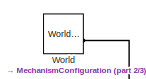
[diagram: root canvas - part 1/3, top left region]
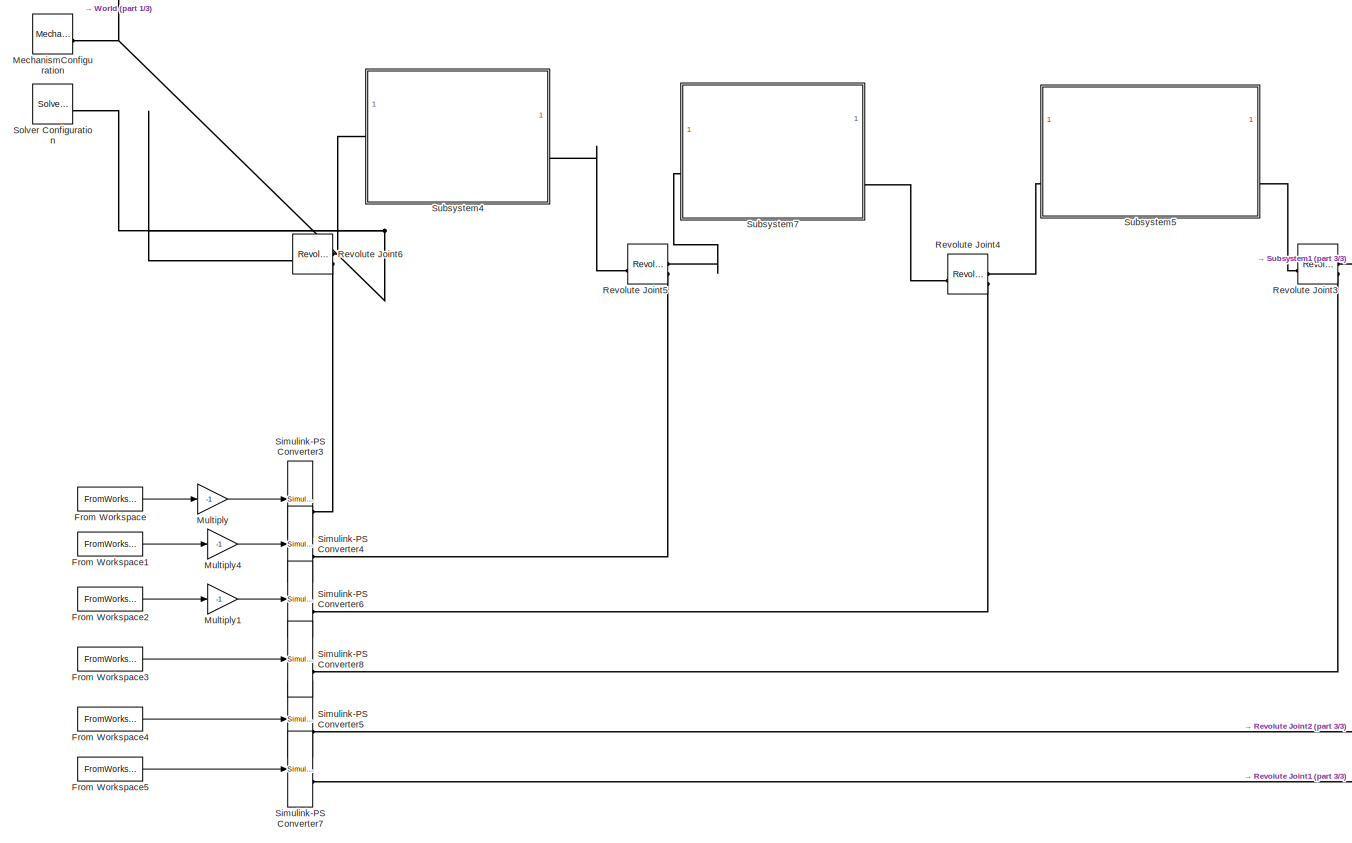
[diagram: root canvas - part 2/3, left side, full height]
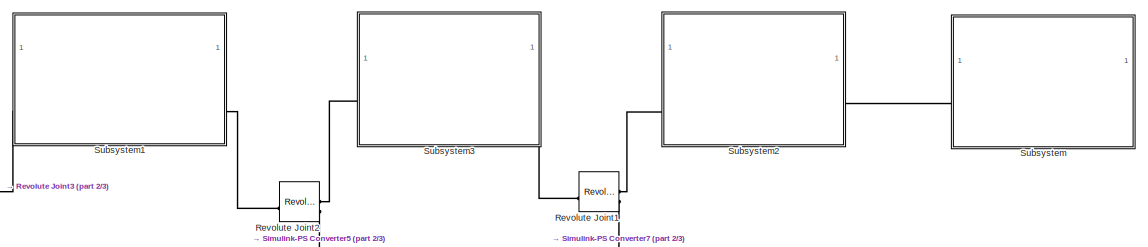
[diagram: root canvas - part 3/3, top right region]
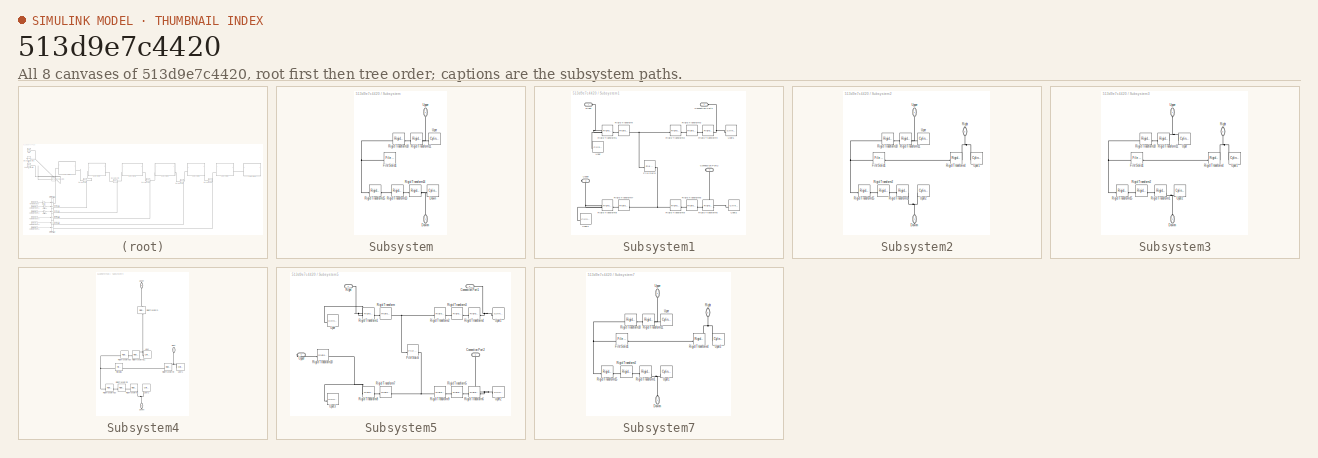
[diagram: thumbnail index - all 8 canvases of the model, root first then tree order]
MODEL slx_513d9e7c4420
KIND model
CONFIG AbsTol = auto
CONFIG EnableMultiTasking = off
CONFIG FixedStep = auto
CONFIG MaxStep = auto
CONFIG MinStep = auto
CONFIG RelTol = 1e-3
CONFIG SampleTimeConstraint = Unconstrained
CONFIG SolverName = VariableStepAuto
CONFIG StartTime = 0.0
CONFIG StopTime = 10
BLOCK [FromWorkspace] From Workspace
  SampleTime = -1
  VariableName = ts_q1
BLOCK [FromWorkspace] From Workspace1
  SampleTime = -1
  VariableName = ts_q2
BLOCK [FromWorkspace] From Workspace2
  SampleTime = -1
  VariableName = ts_q3
BLOCK [FromWorkspace] From Workspace3
  SampleTime = -1
  VariableName = ts_q4
BLOCK [FromWorkspace] From Workspace4
  SampleTime = -1
  VariableName = ts_q5
BLOCK [FromWorkspace] From Workspace5
  SampleTime = -1
  VariableName = ts_q6
BLOCK [Reference] MechanismConfiguration  REF=sm_lib/Utilities/Mechanism
Configuration
  SourceBlock = sm_lib/Utilities/Mechanism\nConfiguration
  SourceType = Mechanism\nConfiguration
BLOCK [Gain] Multiply
  Gain = -1
BLOCK [Gain] Multiply1
  Gain = -1
BLOCK [Gain] Multiply4
  Gain = -1
BLOCK [Reference] Revolute Joint1  REF=sm_lib/Joints/Revolute Joint
  NameLocation = top
  SourceBlock = sm_lib/Joints/Revolute Joint
  SourceType = Revolute Joint
BLOCK [Reference] Revolute Joint2  REF=sm_lib/Joints/Revolute Joint
  NameLocation = top
  SourceBlock = sm_lib/Joints/Revolute Joint
  SourceType = Revolute Joint
BLOCK [Reference] Revolute Joint3  REF=sm_lib/Joints/Revolute Joint
  NameLocation = top
  SourceBlock = sm_lib/Joints/Revolute Joint
  SourceType = Revolute Joint
BLOCK [Reference] Revolute Joint4  REF=sm_lib/Joints/Revolute Joint
  NameLocation = top
  SourceBlock = sm_lib/Joints/Revolute Joint
  SourceType = Revolute Joint
BLOCK [Reference] Revolute Joint5  REF=sm_lib/Joints/Revolute Joint
  NameLocation = top
  SourceBlock = sm_lib/Joints/Revolute Joint
  SourceType = Revolute Joint
BLOCK [Reference] Revolute Joint6  REF=sm_lib/Joints/Revolute Joint
  NameLocation = top
  SourceBlock = sm_lib/Joints/Revolute Joint
  SourceType = Revolute Joint
BLOCK [Reference] Simulink-PS Converter3  REF=nesl_utility/Simulink-PS
Converter
  SourceBlock = nesl_utility/Simulink-PS\nConverter
  SourceType = Simulink-PS\nConverter
BLOCK [Reference] Simulink-PS Converter4  REF=nesl_utility/Simulink-PS
Converter
  SourceBlock = nesl_utility/Simulink-PS\nConverter
  SourceType = Simulink-PS\nConverter
BLOCK [Reference] Simulink-PS Converter5  REF=nesl_utility/Simulink-PS
Converter
  SourceBlock = nesl_utility/Simulink-PS\nConverter
  SourceType = Simulink-PS\nConverter
BLOCK [Reference] Simulink-PS Converter6  REF=nesl_utility/Simulink-PS
Converter
  SourceBlock = nesl_utility/Simulink-PS\nConverter
  SourceType = Simulink-PS\nConverter
BLOCK [Reference] Simulink-PS Converter7  REF=nesl_utility/Simulink-PS
Converter
  SourceBlock = nesl_utility/Simulink-PS\nConverter
  SourceType = Simulink-PS\nConverter
BLOCK [Reference] Simulink-PS Converter8  REF=nesl_utility/Simulink-PS
Converter
  SourceBlock = nesl_utility/Simulink-PS\nConverter
  SourceType = Simulink-PS\nConverter
BLOCK [Reference] Solver Configuration  REF=nesl_utility/Solver
Configuration
  SourceBlock = nesl_utility/Solver\nConfiguration
  SourceType = Solver\nConfiguration
BLOCK [SubSystem] Subsystem
  NameLocation = top
BLOCK [Reference] Subsystem/Down  REF=sm_lib/Body Elements/Cylindrical Solid
  NameLocation = top
  SourceBlock = sm_lib/Body Elements/Cylindrical Solid
  SourceType = Cylindrical Solid
BLOCK [PMIOPort] Subsystem/Downn
  NameLocation = right
  Port = 2
  Side = Right
BLOCK [Reference] Subsystem/File Solid1  REF=sm_lib/Body Elements/File Solid
  SourceBlock = sm_lib/Body Elements/File Solid
  SourceType = File Solid
BLOCK [Reference] Subsystem/Rigid Transform10  REF=sm_lib/Frames and
Transforms/Rigid
Transform
  SourceBlock = sm_lib/Frames and\nTransforms/Rigid\nTransform
  SourceType = Rigid\nTransform
BLOCK [Reference] Subsystem/Rigid Transform11  REF=sm_lib/Frames and
Transforms/Rigid
Transform
  SourceBlock = sm_lib/Frames and\nTransforms/Rigid\nTransform
  SourceType = Rigid\nTransform
BLOCK [Reference] Subsystem/Rigid Transform13  REF=sm_lib/Frames and
Transforms/Rigid
Transform
  SourceBlock = sm_lib/Frames and\nTransforms/Rigid\nTransform
  SourceType = Rigid\nTransform
BLOCK [Reference] Subsystem/Rigid Transform14  REF=sm_lib/Frames and
Transforms/Rigid
Transform
  SourceBlock = sm_lib/Frames and\nTransforms/Rigid\nTransform
  SourceType = Rigid\nTransform
BLOCK [Reference] Subsystem/Rigid Transform15  REF=sm_lib/Frames and
Transforms/Rigid
Transform
  SourceBlock = sm_lib/Frames and\nTransforms/Rigid\nTransform
  SourceType = Rigid\nTransform
BLOCK [Reference] Subsystem/Uper  REF=sm_lib/Body Elements/Cylindrical Solid
  NameLocation = top
  SourceBlock = sm_lib/Body Elements/Cylindrical Solid
  SourceType = Cylindrical Solid
BLOCK [PMIOPort] Subsystem/Upper
  NameLocation = left
  Side = Left
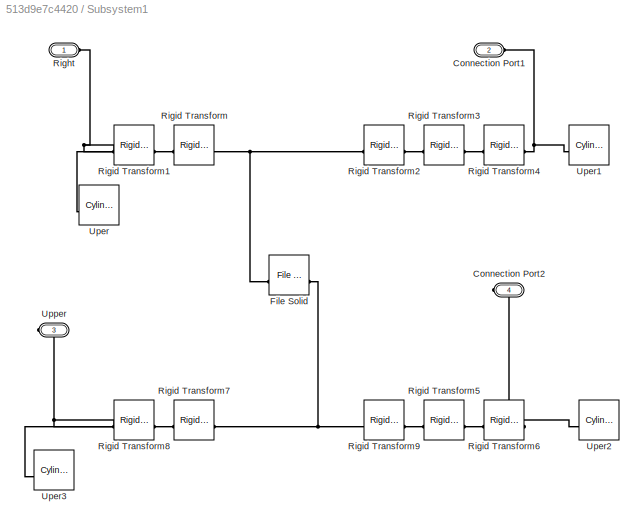
BLOCK [SubSystem] Subsystem1
  NameLocation = top
BLOCK [PMIOPort] Subsystem1/Connection Port1
  Port = 2
  Side = Left
BLOCK [PMIOPort] Subsystem1/Connection Port2
  Port = 4
  Side = Right
BLOCK [Reference] Subsystem1/File Solid  REF=sm_lib/Body Elements/File Solid
  SourceBlock = sm_lib/Body Elements/File Solid
  SourceType = File Solid
BLOCK [PMIOPort] Subsystem1/Right
  Side = Left
BLOCK [Reference] Subsystem1/Rigid Transform  REF=sm_lib/Frames and
Transforms/Rigid
Transform
  NameLocation = top
  SourceBlock = sm_lib/Frames and\nTransforms/Rigid\nTransform
  SourceType = Rigid\nTransform
BLOCK [Reference] Subsystem1/Rigid Transform1  REF=sm_lib/Frames and
Transforms/Rigid
Transform
  NameLocation = top
  SourceBlock = sm_lib/Frames and\nTransforms/Rigid\nTransform
  SourceType = Rigid\nTransform
BLOCK [Reference] Subsystem1/Rigid Transform2  REF=sm_lib/Frames and
Transforms/Rigid
Transform
  SourceBlock = sm_lib/Frames and\nTransforms/Rigid\nTransform
  SourceType = Rigid\nTransform
BLOCK [Reference] Subsystem1/Rigid Transform3  REF=sm_lib/Frames and
Transforms/Rigid
Transform
  SourceBlock = sm_lib/Frames and\nTransforms/Rigid\nTransform
  SourceType = Rigid\nTransform
BLOCK [Reference] Subsystem1/Rigid Transform4  REF=sm_lib/Frames and
Transforms/Rigid
Transform
  SourceBlock = sm_lib/Frames and\nTransforms/Rigid\nTransform
  SourceType = Rigid\nTransform
BLOCK [Reference] Subsystem1/Rigid Transform5  REF=sm_lib/Frames and
Transforms/Rigid
Transform
  SourceBlock = sm_lib/Frames and\nTransforms/Rigid\nTransform
  SourceType = Rigid\nTransform
BLOCK [Reference] Subsystem1/Rigid Transform6  REF=sm_lib/Frames and
Transforms/Rigid
Transform
  SourceBlock = sm_lib/Frames and\nTransforms/Rigid\nTransform
  SourceType = Rigid\nTransform
BLOCK [Reference] Subsystem1/Rigid Transform7  REF=sm_lib/Frames and
Transforms/Rigid
Transform
  NameLocation = top
  SourceBlock = sm_lib/Frames and\nTransforms/Rigid\nTransform
  SourceType = Rigid\nTransform
BLOCK [Reference] Subsystem1/Rigid Transform8  REF=sm_lib/Frames and
Transforms/Rigid
Transform
  NameLocation = top
  SourceBlock = sm_lib/Frames and\nTransforms/Rigid\nTransform
  SourceType = Rigid\nTransform
BLOCK [Reference] Subsystem1/Rigid Transform9  REF=sm_lib/Frames and
Transforms/Rigid
Transform
  SourceBlock = sm_lib/Frames and\nTransforms/Rigid\nTransform
  SourceType = Rigid\nTransform
BLOCK [Reference] Subsystem1/Uper  REF=sm_lib/Body Elements/Cylindrical Solid
  NameLocation = top
  SourceBlock = sm_lib/Body Elements/Cylindrical Solid
  SourceType = Cylindrical Solid
BLOCK [Reference] Subsystem1/Uper1  REF=sm_lib/Body Elements/Cylindrical Solid
  NameLocation = top
  SourceBlock = sm_lib/Body Elements/Cylindrical Solid
  SourceType = Cylindrical Solid
BLOCK [Reference] Subsystem1/Uper2  REF=sm_lib/Body Elements/Cylindrical Solid
  NameLocation = top
  SourceBlock = sm_lib/Body Elements/Cylindrical Solid
  SourceType = Cylindrical Solid
BLOCK [Reference] Subsystem1/Uper3  REF=sm_lib/Body Elements/Cylindrical Solid
  NameLocation = top
  SourceBlock = sm_lib/Body Elements/Cylindrical Solid
  SourceType = Cylindrical Solid
BLOCK [PMIOPort] Subsystem1/Upper
  Port = 3
  Side = Right
BLOCK [SubSystem] Subsystem2
  NameLocation = top
BLOCK [PMIOPort] Subsystem2/Downn
  NameLocation = right
  Port = 2
  Side = Right
BLOCK [Reference] Subsystem2/File Solid1  REF=sm_lib/Body Elements/File Solid
  SourceBlock = sm_lib/Body Elements/File Solid
  SourceType = File Solid
BLOCK [PMIOPort] Subsystem2/Right
  NameLocation = left
  Port = 3
  Side = Right
BLOCK [Reference] Subsystem2/Rigid Transform1  REF=sm_lib/Frames and
Transforms/Rigid
Transform
  SourceBlock = sm_lib/Frames and\nTransforms/Rigid\nTransform
  SourceType = Rigid\nTransform
BLOCK [Reference] Subsystem2/Rigid Transform10  REF=sm_lib/Frames and
Transforms/Rigid
Transform
  SourceBlock = sm_lib/Frames and\nTransforms/Rigid\nTransform
  SourceType = Rigid\nTransform
BLOCK [Reference] Subsystem2/Rigid Transform11  REF=sm_lib/Frames and
Transforms/Rigid
Transform
  SourceBlock = sm_lib/Frames and\nTransforms/Rigid\nTransform
  SourceType = Rigid\nTransform
BLOCK [Reference] Subsystem2/Rigid Transform15  REF=sm_lib/Frames and
Transforms/Rigid
Transform
  SourceBlock = sm_lib/Frames and\nTransforms/Rigid\nTransform
  SourceType = Rigid\nTransform
BLOCK [Reference] Subsystem2/Rigid Transform2  REF=sm_lib/Frames and
Transforms/Rigid
Transform
  SourceBlock = sm_lib/Frames and\nTransforms/Rigid\nTransform
  SourceType = Rigid\nTransform
BLOCK [Reference] Subsystem2/Rigid Transform4  REF=sm_lib/Frames and
Transforms/Rigid
Transform
  SourceBlock = sm_lib/Frames and\nTransforms/Rigid\nTransform
  SourceType = Rigid\nTransform
BLOCK [Reference] Subsystem2/Uper  REF=sm_lib/Body Elements/Cylindrical Solid
  NameLocation = top
  SourceBlock = sm_lib/Body Elements/Cylindrical Solid
  SourceType = Cylindrical Solid
BLOCK [Reference] Subsystem2/Uper1  REF=sm_lib/Body Elements/Cylindrical Solid
  NameLocation = top
  SourceBlock = sm_lib/Body Elements/Cylindrical Solid
  SourceType = Cylindrical Solid
BLOCK [Reference] Subsystem2/Uper2  REF=sm_lib/Body Elements/Cylindrical Solid
  NameLocation = top
  SourceBlock = sm_lib/Body Elements/Cylindrical Solid
  SourceType = Cylindrical Solid
BLOCK [PMIOPort] Subsystem2/Upper
  NameLocation = left
  Side = Left
BLOCK [SubSystem] Subsystem3
  NameLocation = top
BLOCK [PMIOPort] Subsystem3/Downn
  NameLocation = right
  Port = 2
  Side = Left
BLOCK [Reference] Subsystem3/File Solid1  REF=sm_lib/Body Elements/File Solid
  SourceBlock = sm_lib/Body Elements/File Solid
  SourceType = File Solid
BLOCK [PMIOPort] Subsystem3/Right
  NameLocation = left
  Port = 3
  Side = Right
BLOCK [Reference] Subsystem3/Rigid Transform1  REF=sm_lib/Frames and
Transforms/Rigid
Transform
  SourceBlock = sm_lib/Frames and\nTransforms/Rigid\nTransform
  SourceType = Rigid\nTransform
BLOCK [Reference] Subsystem3/Rigid Transform10  REF=sm_lib/Frames and
Transforms/Rigid
Transform
  SourceBlock = sm_lib/Frames and\nTransforms/Rigid\nTransform
  SourceType = Rigid\nTransform
BLOCK [Reference] Subsystem3/Rigid Transform11  REF=sm_lib/Frames and
Transforms/Rigid
Transform
  SourceBlock = sm_lib/Frames and\nTransforms/Rigid\nTransform
  SourceType = Rigid\nTransform
BLOCK [Reference] Subsystem3/Rigid Transform15  REF=sm_lib/Frames and
Transforms/Rigid
Transform
  SourceBlock = sm_lib/Frames and\nTransforms/Rigid\nTransform
  SourceType = Rigid\nTransform
BLOCK [Reference] Subsystem3/Rigid Transform2  REF=sm_lib/Frames and
Transforms/Rigid
Transform
  SourceBlock = sm_lib/Frames and\nTransforms/Rigid\nTransform
  SourceType = Rigid\nTransform
BLOCK [Reference] Subsystem3/Rigid Transform4  REF=sm_lib/Frames and
Transforms/Rigid
Transform
  SourceBlock = sm_lib/Frames and\nTransforms/Rigid\nTransform
  SourceType = Rigid\nTransform
BLOCK [Reference] Subsystem3/Uper  REF=sm_lib/Body Elements/Cylindrical Solid
  NameLocation = top
  SourceBlock = sm_lib/Body Elements/Cylindrical Solid
  SourceType = Cylindrical Solid
BLOCK [Reference] Subsystem3/Uper1  REF=sm_lib/Body Elements/Cylindrical Solid
  NameLocation = top
  SourceBlock = sm_lib/Body Elements/Cylindrical Solid
  SourceType = Cylindrical Solid
BLOCK [Reference] Subsystem3/Uper2  REF=sm_lib/Body Elements/Cylindrical Solid
  NameLocation = top
  SourceBlock = sm_lib/Body Elements/Cylindrical Solid
  SourceType = Cylindrical Solid
BLOCK [PMIOPort] Subsystem3/Upper
  NameLocation = left
  Side = Left
BLOCK [SubSystem] Subsystem4
  NameLocation = top
BLOCK [PMIOPort] Subsystem4/Downn
  NameLocation = right
  Port = 3
  Side = Right
BLOCK [Reference] Subsystem4/File Solid1  REF=sm_lib/Body Elements/File Solid
  SourceBlock = sm_lib/Body Elements/File Solid
  SourceType = File Solid
BLOCK [PMIOPort] Subsystem4/Right
  NameLocation = left
  Side = Left
BLOCK [Reference] Subsystem4/Rigid Transform  REF=sm_lib/Frames and
Transforms/Rigid
Transform
  NameLocation = left
  SourceBlock = sm_lib/Frames and\nTransforms/Rigid\nTransform
  SourceType = Rigid\nTransform
BLOCK [Reference] Subsystem4/Rigid Transform1  REF=sm_lib/Frames and
Transforms/Rigid
Transform
  SourceBlock = sm_lib/Frames and\nTransforms/Rigid\nTransform
  SourceType = Rigid\nTransform
BLOCK [Reference] Subsystem4/Rigid Transform10  REF=sm_lib/Frames and
Transforms/Rigid
Transform
  SourceBlock = sm_lib/Frames and\nTransforms/Rigid\nTransform
  SourceType = Rigid\nTransform
BLOCK [Reference] Subsystem4/Rigid Transform11  REF=sm_lib/Frames and
Transforms/Rigid
Transform
  SourceBlock = sm_lib/Frames and\nTransforms/Rigid\nTransform
  SourceType = Rigid\nTransform
BLOCK [Reference] Subsystem4/Rigid Transform15  REF=sm_lib/Frames and
Transforms/Rigid
Transform
  SourceBlock = sm_lib/Frames and\nTransforms/Rigid\nTransform
  SourceType = Rigid\nTransform
BLOCK [Reference] Subsystem4/Rigid Transform2  REF=sm_lib/Frames and
Transforms/Rigid
Transform
  SourceBlock = sm_lib/Frames and\nTransforms/Rigid\nTransform
  SourceType = Rigid\nTransform
BLOCK [Reference] Subsystem4/Rigid Transform4  REF=sm_lib/Frames and
Transforms/Rigid
Transform
  SourceBlock = sm_lib/Frames and\nTransforms/Rigid\nTransform
  SourceType = Rigid\nTransform
BLOCK [Reference] Subsystem4/Uper  REF=sm_lib/Body Elements/Cylindrical Solid
  NameLocation = top
  SourceBlock = sm_lib/Body Elements/Cylindrical Solid
  SourceType = Cylindrical Solid
BLOCK [Reference] Subsystem4/Uper1  REF=sm_lib/Body Elements/Cylindrical Solid
  NameLocation = top
  SourceBlock = sm_lib/Body Elements/Cylindrical Solid
  SourceType = Cylindrical Solid
BLOCK [Reference] Subsystem4/Uper2  REF=sm_lib/Body Elements/Cylindrical Solid
  NameLocation = top
  SourceBlock = sm_lib/Body Elements/Cylindrical Solid
  SourceType = Cylindrical Solid
BLOCK [PMIOPort] Subsystem4/Upper
  NameLocation = left
  Port = 2
  Side = Right
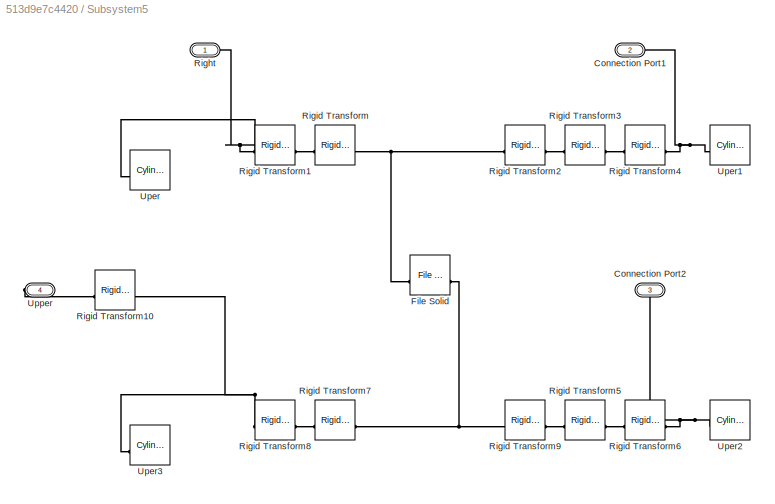
BLOCK [SubSystem] Subsystem5
BLOCK [PMIOPort] Subsystem5/Connection Port1
  Port = 2
  Side = Left
BLOCK [PMIOPort] Subsystem5/Connection Port2
  Port = 3
  Side = Right
BLOCK [Reference] Subsystem5/File Solid  REF=sm_lib/Body Elements/File Solid
  SourceBlock = sm_lib/Body Elements/File Solid
  SourceType = File Solid
BLOCK [PMIOPort] Subsystem5/Right
  Side = Left
BLOCK [Reference] Subsystem5/Rigid Transform  REF=sm_lib/Frames and
Transforms/Rigid
Transform
  NameLocation = top
  SourceBlock = sm_lib/Frames and\nTransforms/Rigid\nTransform
  SourceType = Rigid\nTransform
BLOCK [Reference] Subsystem5/Rigid Transform1  REF=sm_lib/Frames and
Transforms/Rigid
Transform
  NameLocation = top
  SourceBlock = sm_lib/Frames and\nTransforms/Rigid\nTransform
  SourceType = Rigid\nTransform
BLOCK [Reference] Subsystem5/Rigid Transform10  REF=sm_lib/Frames and
Transforms/Rigid
Transform
  SourceBlock = sm_lib/Frames and\nTransforms/Rigid\nTransform
  SourceType = Rigid\nTransform
BLOCK [Reference] Subsystem5/Rigid Transform2  REF=sm_lib/Frames and
Transforms/Rigid
Transform
  SourceBlock = sm_lib/Frames and\nTransforms/Rigid\nTransform
  SourceType = Rigid\nTransform
BLOCK [Reference] Subsystem5/Rigid Transform3  REF=sm_lib/Frames and
Transforms/Rigid
Transform
  SourceBlock = sm_lib/Frames and\nTransforms/Rigid\nTransform
  SourceType = Rigid\nTransform
BLOCK [Reference] Subsystem5/Rigid Transform4  REF=sm_lib/Frames and
Transforms/Rigid
Transform
  SourceBlock = sm_lib/Frames and\nTransforms/Rigid\nTransform
  SourceType = Rigid\nTransform
BLOCK [Reference] Subsystem5/Rigid Transform5  REF=sm_lib/Frames and
Transforms/Rigid
Transform
  SourceBlock = sm_lib/Frames and\nTransforms/Rigid\nTransform
  SourceType = Rigid\nTransform
BLOCK [Reference] Subsystem5/Rigid Transform6  REF=sm_lib/Frames and
Transforms/Rigid
Transform
  SourceBlock = sm_lib/Frames and\nTransforms/Rigid\nTransform
  SourceType = Rigid\nTransform
BLOCK [Reference] Subsystem5/Rigid Transform7  REF=sm_lib/Frames and
Transforms/Rigid
Transform
  NameLocation = top
  SourceBlock = sm_lib/Frames and\nTransforms/Rigid\nTransform
  SourceType = Rigid\nTransform
BLOCK [Reference] Subsystem5/Rigid Transform8  REF=sm_lib/Frames and
Transforms/Rigid
Transform
  NameLocation = top
  SourceBlock = sm_lib/Frames and\nTransforms/Rigid\nTransform
  SourceType = Rigid\nTransform
BLOCK [Reference] Subsystem5/Rigid Transform9  REF=sm_lib/Frames and
Transforms/Rigid
Transform
  SourceBlock = sm_lib/Frames and\nTransforms/Rigid\nTransform
  SourceType = Rigid\nTransform
BLOCK [Reference] Subsystem5/Uper  REF=sm_lib/Body Elements/Cylindrical Solid
  NameLocation = top
  SourceBlock = sm_lib/Body Elements/Cylindrical Solid
  SourceType = Cylindrical Solid
BLOCK [Reference] Subsystem5/Uper1  REF=sm_lib/Body Elements/Cylindrical Solid
  NameLocation = top
  SourceBlock = sm_lib/Body Elements/Cylindrical Solid
  SourceType = Cylindrical Solid
BLOCK [Reference] Subsystem5/Uper2  REF=sm_lib/Body Elements/Cylindrical Solid
  NameLocation = top
  SourceBlock = sm_lib/Body Elements/Cylindrical Solid
  SourceType = Cylindrical Solid
BLOCK [Reference] Subsystem5/Uper3  REF=sm_lib/Body Elements/Cylindrical Solid
  NameLocation = top
  SourceBlock = sm_lib/Body Elements/Cylindrical Solid
  SourceType = Cylindrical Solid
BLOCK [PMIOPort] Subsystem5/Upper
  Port = 4
  Side = Right
BLOCK [SubSystem] Subsystem7
BLOCK [PMIOPort] Subsystem7/Downn
  NameLocation = right
  Side = Left
BLOCK [Reference] Subsystem7/File Solid1  REF=sm_lib/Body Elements/File Solid
  SourceBlock = sm_lib/Body Elements/File Solid
  SourceType = File Solid
BLOCK [PMIOPort] Subsystem7/Right
  NameLocation = left
  Port = 3
  Side = Right
BLOCK [Reference] Subsystem7/Rigid Transform1  REF=sm_lib/Frames and
Transforms/Rigid
Transform
  SourceBlock = sm_lib/Frames and\nTransforms/Rigid\nTransform
  SourceType = Rigid\nTransform
BLOCK [Reference] Subsystem7/Rigid Transform10  REF=sm_lib/Frames and
Transforms/Rigid
Transform
  SourceBlock = sm_lib/Frames and\nTransforms/Rigid\nTransform
  SourceType = Rigid\nTransform
BLOCK [Reference] Subsystem7/Rigid Transform11  REF=sm_lib/Frames and
Transforms/Rigid
Transform
  SourceBlock = sm_lib/Frames and\nTransforms/Rigid\nTransform
  SourceType = Rigid\nTransform
BLOCK [Reference] Subsystem7/Rigid Transform15  REF=sm_lib/Frames and
Transforms/Rigid
Transform
  SourceBlock = sm_lib/Frames and\nTransforms/Rigid\nTransform
  SourceType = Rigid\nTransform
BLOCK [Reference] Subsystem7/Rigid Transform2  REF=sm_lib/Frames and
Transforms/Rigid
Transform
  SourceBlock = sm_lib/Frames and\nTransforms/Rigid\nTransform
  SourceType = Rigid\nTransform
BLOCK [Reference] Subsystem7/Rigid Transform4  REF=sm_lib/Frames and
Transforms/Rigid
Transform
  SourceBlock = sm_lib/Frames and\nTransforms/Rigid\nTransform
  SourceType = Rigid\nTransform
BLOCK [Reference] Subsystem7/Uper  REF=sm_lib/Body Elements/Cylindrical Solid
  NameLocation = top
  SourceBlock = sm_lib/Body Elements/Cylindrical Solid
  SourceType = Cylindrical Solid
BLOCK [Reference] Subsystem7/Uper1  REF=sm_lib/Body Elements/Cylindrical Solid
  NameLocation = top
  SourceBlock = sm_lib/Body Elements/Cylindrical Solid
  SourceType = Cylindrical Solid
BLOCK [Reference] Subsystem7/Uper2  REF=sm_lib/Body Elements/Cylindrical Solid
  NameLocation = top
  SourceBlock = sm_lib/Body Elements/Cylindrical Solid
  SourceType = Cylindrical Solid
BLOCK [PMIOPort] Subsystem7/Upper
  NameLocation = left
  Port = 2
  Side = Right
BLOCK [Reference] World  REF=sm_lib/Frames and
Transforms/World Frame
  SourceBlock = sm_lib/Frames and\nTransforms/World Frame
  SourceType = World Frame
LINE From Workspace1:1 -> Multiply4:1
LINE From Workspace2:1 -> Multiply1:1
LINE From Workspace3:1 -> Simulink-PS Converter8:1
LINE From Workspace4:1 -> Simulink-PS Converter5:1
LINE From Workspace5:1 -> Simulink-PS Converter7:1
LINE From Workspace:1 -> Multiply:1
LINE Multiply1:1 -> Simulink-PS Converter6:1
LINE Multiply4:1 -> Simulink-PS Converter4:1
LINE Multiply:1 -> Simulink-PS Converter3:1
PNET net1: MechanismConfiguration:RConn1 -- Revolute Joint6:RConn1 -- Solver Configuration:RConn1 -- World:RConn1
PLINE Revolute Joint1:LConn1 -- Subsystem2:RConn2
PLINE Revolute Joint1:LConn2 -- Simulink-PS Converter7:RConn1
PLINE Revolute Joint1:RConn1 -- Subsystem3:LConn2
PLINE Revolute Joint2:LConn1 -- Subsystem3:RConn1
PLINE Revolute Joint2:LConn2 -- Simulink-PS Converter5:RConn1
PLINE Revolute Joint2:RConn1 -- Subsystem1:LConn2
PLINE Revolute Joint3:LConn1 -- Subsystem1:RConn2
PLINE Revolute Joint3:LConn2 -- Simulink-PS Converter8:RConn1
PLINE Revolute Joint3:RConn1 -- Subsystem5:RConn2
PLINE Revolute Joint4:LConn1 -- Subsystem5:LConn2
PLINE Revolute Joint4:LConn2 -- Simulink-PS Converter6:RConn1
PLINE Revolute Joint4:RConn1 -- Subsystem7:RConn2
PLINE Revolute Joint5:LConn1 -- Subsystem7:LConn1
PLINE Revolute Joint5:LConn2 -- Simulink-PS Converter4:RConn1
PLINE Revolute Joint5:RConn1 -- Subsystem4:LConn1
PLINE Revolute Joint6:LConn1 -- Subsystem4:RConn1
PLINE Revolute Joint6:LConn2 -- Simulink-PS Converter3:RConn1
PNET net2: Subsystem/Down:RConn1 -- Subsystem/Downn:RConn1 -- Subsystem/Rigid Transform14:RConn1
PNET net3: Subsystem/File Solid1:LConn1 -- Subsystem/Rigid Transform10:LConn1 -- Subsystem/Rigid Transform15:LConn1
PLINE Subsystem/Rigid Transform10:RConn1 -- Subsystem/Rigid Transform11:LConn1
PNET net4: Subsystem/Rigid Transform11:RConn1 -- Subsystem/Uper:RConn1 -- Subsystem/Upper:RConn1
PLINE Subsystem/Rigid Transform13:LConn1 -- Subsystem/Rigid Transform15:RConn1
PLINE Subsystem/Rigid Transform13:RConn1 -- Subsystem/Rigid Transform14:LConn1
PNET net5: Subsystem1/Connection Port1:RConn1 -- Subsystem1/Rigid Transform4:RConn1 -- Subsystem1/Uper1:RConn1
PNET net6: Subsystem1/Connection Port2:RConn1 -- Subsystem1/Rigid Transform6:RConn1 -- Subsystem1/Uper2:RConn1
PNET net7: Subsystem1/File Solid:LConn1 -- Subsystem1/Rigid Transform2:LConn1 -- Subsystem1/Rigid Transform:LConn1
PNET net8: Subsystem1/File Solid:RConn1 -- Subsystem1/Rigid Transform7:LConn1 -- Subsystem1/Rigid Transform9:LConn1
PNET net9: Subsystem1/Right:RConn1 -- Subsystem1/Rigid Transform1:RConn1 -- Subsystem1/Uper:RConn1
PLINE Subsystem1/Rigid Transform1:LConn1 -- Subsystem1/Rigid Transform:RConn1
PLINE Subsystem1/Rigid Transform2:RConn1 -- Subsystem1/Rigid Transform3:LConn1
PLINE Subsystem1/Rigid Transform3:RConn1 -- Subsystem1/Rigid Transform4:LConn1
PLINE Subsystem1/Rigid Transform5:LConn1 -- Subsystem1/Rigid Transform9:RConn1
PLINE Subsystem1/Rigid Transform5:RConn1 -- Subsystem1/Rigid Transform6:LConn1
PLINE Subsystem1/Rigid Transform7:RConn1 -- Subsystem1/Rigid Transform8:LConn1
PNET net10: Subsystem1/Rigid Transform8:RConn1 -- Subsystem1/Uper3:RConn1 -- Subsystem1/Upper:RConn1
PNET net11: Subsystem2/Downn:RConn1 -- Subsystem2/Rigid Transform1:RConn1 -- Subsystem2/Uper2:RConn1
PNET net12: Subsystem2/File Solid1:LConn1 -- Subsystem2/Rigid Transform10:LConn1 -- Subsystem2/Rigid Transform15:LConn1
PLINE Subsystem2/File Solid1:RConn1 -- Subsystem2/Rigid Transform4:LConn1
PNET net13: Subsystem2/Right:RConn1 -- Subsystem2/Rigid Transform4:RConn1 -- Subsystem2/Uper1:RConn1
PLINE Subsystem2/Rigid Transform10:RConn1 -- Subsystem2/Rigid Transform11:LConn1
PNET net14: Subsystem2/Rigid Transform11:RConn1 -- Subsystem2/Uper:RConn1 -- Subsystem2/Upper:RConn1
PLINE Subsystem2/Rigid Transform15:RConn1 -- Subsystem2/Rigid Transform2:LConn1
PLINE Subsystem2/Rigid Transform1:LConn1 -- Subsystem2/Rigid Transform2:RConn1
PLINE Subsystem2:LConn1 -- Subsystem:RConn1
PNET net15: Subsystem3/Downn:RConn1 -- Subsystem3/Rigid Transform1:RConn1 -- Subsystem3/Uper2:RConn1
PNET net16: Subsystem3/File Solid1:LConn1 -- Subsystem3/Rigid Transform10:LConn1 -- Subsystem3/Rigid Transform15:LConn1
PLINE Subsystem3/File Solid1:RConn1 -- Subsystem3/Rigid Transform4:LConn1
PNET net17: Subsystem3/Right:RConn1 -- Subsystem3/Rigid Transform4:RConn1 -- Subsystem3/Uper1:RConn1
PLINE Subsystem3/Rigid Transform10:RConn1 -- Subsystem3/Rigid Transform11:LConn1
PNET net18: Subsystem3/Rigid Transform11:RConn1 -- Subsystem3/Uper:RConn1 -- Subsystem3/Upper:RConn1
PLINE Subsystem3/Rigid Transform15:RConn1 -- Subsystem3/Rigid Transform2:LConn1
PLINE Subsystem3/Rigid Transform1:LConn1 -- Subsystem3/Rigid Transform2:RConn1
PNET net19: Subsystem4/Downn:RConn1 -- Subsystem4/Rigid Transform1:RConn1 -- Subsystem4/Uper2:RConn1
PNET net20: Subsystem4/File Solid1:LConn1 -- Subsystem4/Rigid Transform10:LConn1 -- Subsystem4/Rigid Transform15:LConn1
PLINE Subsystem4/File Solid1:RConn1 -- Subsystem4/Rigid Transform4:LConn1
PNET net21: Subsystem4/Right:RConn1 -- Subsystem4/Rigid Transform4:RConn1 -- Subsystem4/Uper1:RConn1
PLINE Subsystem4/Rigid Transform10:RConn1 -- Subsystem4/Rigid Transform11:LConn1
PNET net22: Subsystem4/Rigid Transform11:RConn1 -- Subsystem4/Rigid Transform:RConn1 -- Subsystem4/Uper:RConn1
PLINE Subsystem4/Rigid Transform15:RConn1 -- Subsystem4/Rigid Transform2:LConn1
PLINE Subsystem4/Rigid Transform1:LConn1 -- Subsystem4/Rigid Transform2:RConn1
PLINE Subsystem4/Rigid Transform:LConn1 -- Subsystem4/Upper:RConn1
PNET net23: Subsystem5/Connection Port1:RConn1 -- Subsystem5/Rigid Transform4:RConn1 -- Subsystem5/Uper1:RConn1
PNET net24: Subsystem5/Connection Port2:RConn1 -- Subsystem5/Rigid Transform6:RConn1 -- Subsystem5/Uper2:RConn1
PNET net25: Subsystem5/File Solid:LConn1 -- Subsystem5/Rigid Transform2:LConn1 -- Subsystem5/Rigid Transform:LConn1
PNET net26: Subsystem5/File Solid:RConn1 -- Subsystem5/Rigid Transform7:LConn1 -- Subsystem5/Rigid Transform9:LConn1
PNET net27: Subsystem5/Right:RConn1 -- Subsystem5/Rigid Transform1:RConn1 -- Subsystem5/Uper:RConn1
PLINE Subsystem5/Rigid Transform10:LConn1 -- Subsystem5/Upper:RConn1
PNET net28: Subsystem5/Rigid Transform10:RConn1 -- Subsystem5/Rigid Transform8:RConn1 -- Subsystem5/Uper3:RConn1
PLINE Subsystem5/Rigid Transform1:LConn1 -- Subsystem5/Rigid Transform:RConn1
PLINE Subsystem5/Rigid Transform2:RConn1 -- Subsystem5/Rigid Transform3:LConn1
PLINE Subsystem5/Rigid Transform3:RConn1 -- Subsystem5/Rigid Transform4:LConn1
PLINE Subsystem5/Rigid Transform5:LConn1 -- Subsystem5/Rigid Transform9:RConn1
PLINE Subsystem5/Rigid Transform5:RConn1 -- Subsystem5/Rigid Transform6:LConn1
PLINE Subsystem5/Rigid Transform7:RConn1 -- Subsystem5/Rigid Transform8:LConn1
PNET net29: Subsystem7/Downn:RConn1 -- Subsystem7/Rigid Transform1:RConn1 -- Subsystem7/Uper1:RConn1
PNET net30: Subsystem7/File Solid1:LConn1 -- Subsystem7/Rigid Transform10:LConn1 -- Subsystem7/Rigid Transform15:LConn1
PLINE Subsystem7/File Solid1:RConn1 -- Subsystem7/Rigid Transform4:LConn1
PNET net31: Subsystem7/Right:RConn1 -- Subsystem7/Rigid Transform4:RConn1 -- Subsystem7/Uper2:RConn1
PLINE Subsystem7/Rigid Transform10:RConn1 -- Subsystem7/Rigid Transform11:LConn1
PNET net32: Subsystem7/Rigid Transform11:RConn1 -- Subsystem7/Uper:RConn1 -- Subsystem7/Upper:RConn1
PLINE Subsystem7/Rigid Transform15:RConn1 -- Subsystem7/Rigid Transform2:LConn1
PLINE Subsystem7/Rigid Transform1:LConn1 -- Subsystem7/Rigid Transform2:RConn1
note: PNET lines group multi-terminal physical nets as a canonical sorted terminal list (undirected conserving connections); 2-terminal nets keep the pairwise PLINE form
